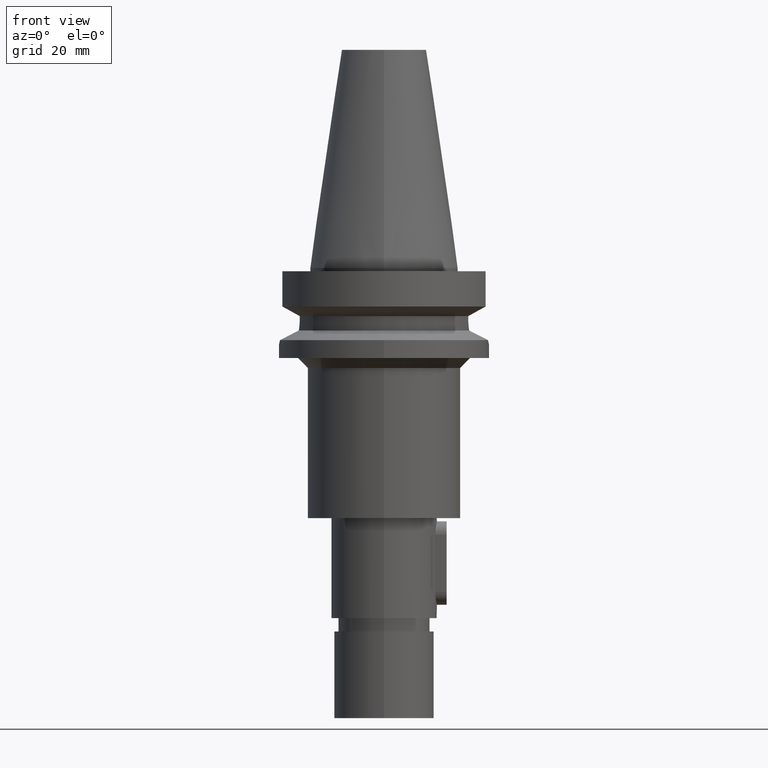
[diagram: clean part render]
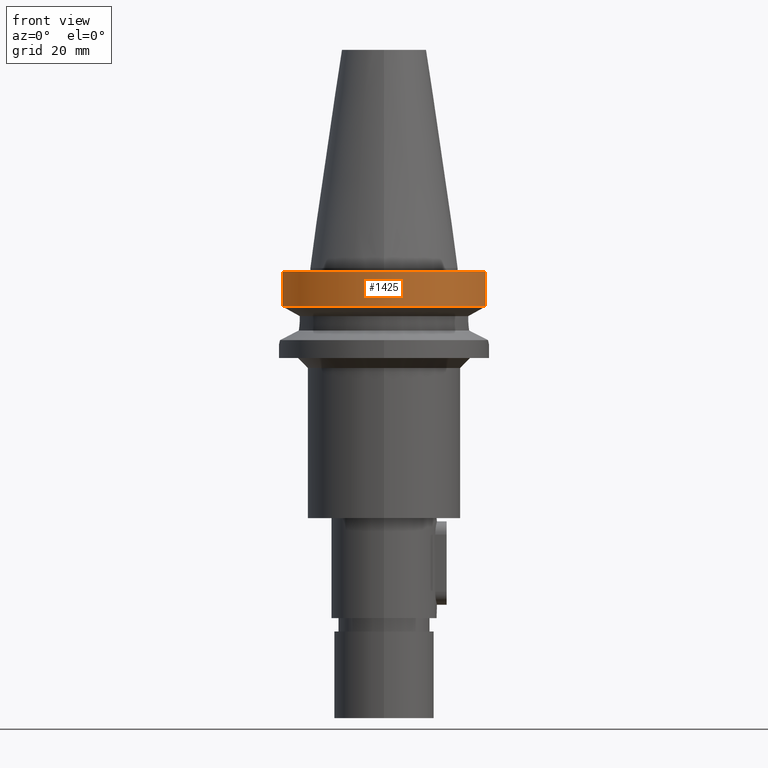
[diagram: same view with one face highlighted and labeled with its STEP entity id]
A machine part, front view. The second image highlights one B-rep face of the part: STEP entity #1425.
In plain terms, the highlighted cylindrical surface (partial cylindrical patch) has radius 31.5 mm, axis along (0, 0, -1).
Its self-contained STEP definition (entity closure, byte-faithful):
#138=CARTESIAN_POINT('',(0.E0,2.148275415064E-14,-1.E0));
#139=DIRECTION('',(0.E0,0.E0,-1.E0));
#140=DIRECTION('',(9.667943721520E-1,-2.555555555556E-1,0.E0));
#141=AXIS2_PLACEMENT_3D('',#138,#139,#140);
#146=CARTESIAN_POINT('',(0.E0,2.148275415064E-14,-1.E0));
#147=DIRECTION('',(0.E0,0.E0,-1.E0));
#148=DIRECTION('',(0.E0,-1.E0,0.E0));
#149=AXIS2_PLACEMENT_3D('',#146,#147,#148);
#251=CARTESIAN_POINT('',(0.E0,1.065333950388E-14,-1.156550565267E1));
#252=DIRECTION('',(0.E0,0.E0,1.E0));
#253=DIRECTION('',(-9.667943721520E-1,-2.555555555555E-1,0.E0));
#254=AXIS2_PLACEMENT_3D('',#251,#252,#253);
#259=CARTESIAN_POINT('',(0.E0,1.065333950388E-14,-1.156550565267E1));
#260=DIRECTION('',(0.E0,0.E0,1.E0));
#261=DIRECTION('',(0.E0,-1.E0,0.E0));
#262=AXIS2_PLACEMENT_3D('',#259,#260,#261);
#283=DIRECTION('',(1.805928989096E-8,-6.832048697103E-8,1.E0));
#284=VECTOR('',#283,1.056551215414E1);
#285=CARTESIAN_POINT('',(-3.045402291359E1,-8.049999278159E0,
-1.156551215414E1));
#286=LINE('',#285,#284);
#290=DIRECTION('',(-1.036708904040E-7,-3.921976827015E-7,-9.999999999999E-1));
#291=VECTOR('',#290,1.056546832751E1);
#292=CARTESIAN_POINT('',(3.045402272279E1,-8.05E0,-1.E0));
#293=LINE('',#292,#291);
#1106=CARTESIAN_POINT('',(3.045402272279E1,-8.05E0,-1.E0));
#1107=VERTEX_POINT('',#1106);
#1108=CARTESIAN_POINT('',(3.046064939756E-14,-3.15E1,-1.E0));
#1109=CARTESIAN_POINT('',(-3.045402272279E1,-8.05E0,-1.E0));
#1110=VERTEX_POINT('',#1108);
#1111=VERTEX_POINT('',#1109);
#1122=CARTESIAN_POINT('',(-3.045402291359E1,-8.049999278159E0,
-1.156551215414E1));
#1123=VERTEX_POINT('',#1122);
#1149=CARTESIAN_POINT('',(0.E0,-3.15E1,-1.156550565267E1));
#1150=CARTESIAN_POINT('',(3.045402272279E1,-8.049999999999E0,
-1.156550565267E1));
#1151=VERTEX_POINT('',#1149);
#1152=VERTEX_POINT('',#1150);
#1411=CARTESIAN_POINT('',(0.E0,2.148275415064E-14,7.542E1));
#1412=DIRECTION('',(0.E0,0.E0,-1.E0));
#1413=DIRECTION('',(0.E0,-1.E0,0.E0));
#1414=AXIS2_PLACEMENT_3D('',#1411,#1412,#1413);
#1415=CYLINDRICAL_SURFACE('',#1414,3.15E1);
#1416=ORIENTED_EDGE('',*,*,#1364,.T.);
#1417=ORIENTED_EDGE('',*,*,#1325,.F.);
#1418=ORIENTED_EDGE('',*,*,#1323,.F.);
#1420=ORIENTED_EDGE('',*,*,#1419,.T.);
#1421=ORIENTED_EDGE('',*,*,#1402,.F.);
#1422=ORIENTED_EDGE('',*,*,#1400,.F.);
#1423=EDGE_LOOP('',(#1416,#1417,#1418,#1420,#1421,#1422));
#1424=FACE_OUTER_BOUND('',#1423,.F.);
#142=CIRCLE('',#141,3.15E1);
#150=CIRCLE('',#149,3.15E1);
#255=CIRCLE('',#254,3.15E1);
#263=CIRCLE('',#262,3.15E1);
#1323=EDGE_CURVE('',#1107,#1110,#142,.T.);
#1325=EDGE_CURVE('',#1110,#1111,#150,.T.);
#1364=EDGE_CURVE('',#1123,#1111,#286,.T.);
#1400=EDGE_CURVE('',#1123,#1151,#255,.T.);
#1402=EDGE_CURVE('',#1151,#1152,#263,.T.);
#1419=EDGE_CURVE('',#1107,#1152,#293,.T.);
#1425=ADVANCED_FACE('',(#1424),#1415,.T.);